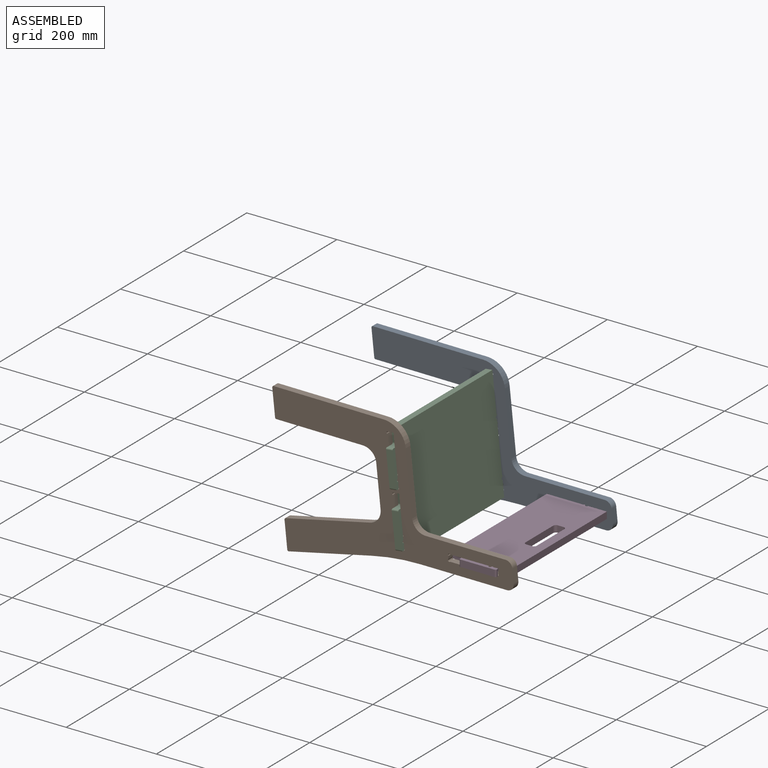
[diagram: assembled view]
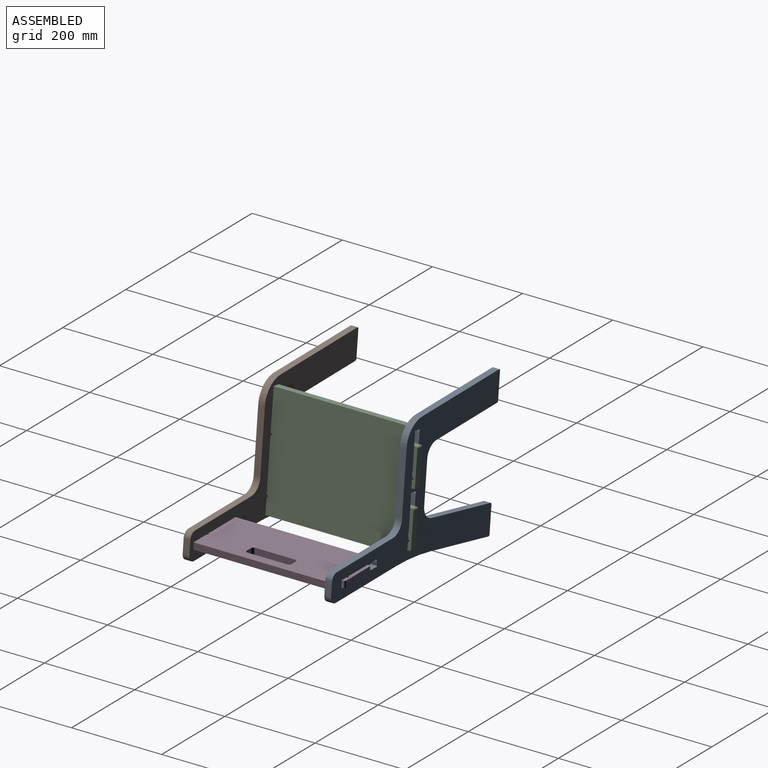
[diagram: assembled view, second angle]
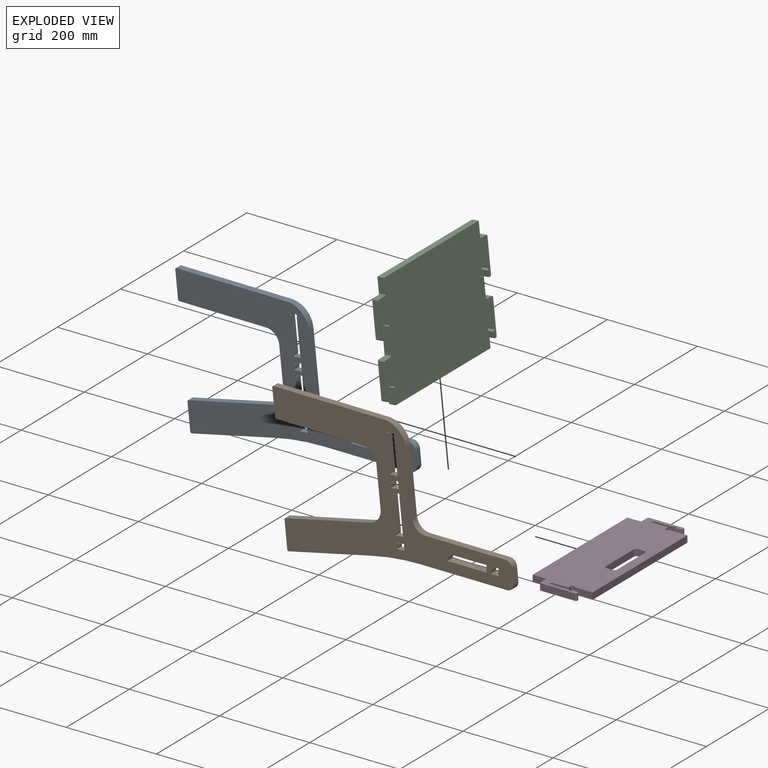
[diagram: exploded view]
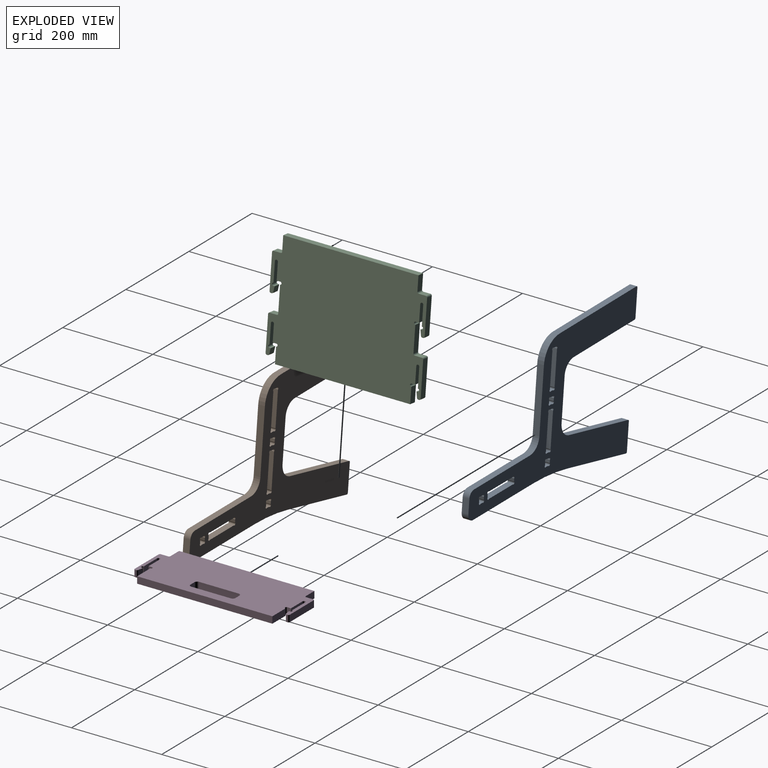
[diagram: exploded view, second angle]
ASSEMBLY  parts=4 mates=3
PART A: 72 faces, bbox 324.1x506.3x14.8 mm
  f0: cylinder r=3mm len=14.8mm, axis (0,0,-1), area 64.8mm2, adj f1,f21,f22,f23
  f1: plane 190.66x21.3mm, normal (0.99,-0.11,0), area 2839.4mm2, adj f0,f2,f22,f23
  f2: cylinder r=30mm len=29.81mm, axis (0,0,-1), area 648mm2, adj f1,f3,f22,f23
  f3: plane 91.97x14.8mm, normal (0,-1,0), area 1361.2mm2, adj f2,f4,f22,f23
  f4: cylinder r=30mm len=29.81mm, axis (0,0,-1), area 648mm2, adj f3,f5,f22,f23
  f5: plane 190.66x21.3mm, normal (-0.99,-0.11,0), area 2839.4mm2, adj f4,f6,f22,f23
  f6: cylinder r=3mm len=14.8mm, axis (0,0,-1), area 64.8mm2, adj f5,f7,f22,f23
  f7: plane 58.96x14.8mm, normal (0,-1,0), area 872.6mm2, adj f6,f8,f22,f23
  f8: cylinder r=3mm len=14.8mm, axis (0,0,-1), area 74.7mm2, adj f7,f9,f22,f23
  f9: plane 187.63x20.96mm, normal (0.99,0.11,0), area 2794.2mm2, adj f8,f10,f22,f23
  f10: cylinder r=500mm len=109.21mm, axis (0,0,-1), area 1619.5mm2, adj f9,f11,f22,f23
  f11: plane 189.57x20.47mm, normal (0.99,-0.11,0), area 2822mm2, adj f10,f12,f22,f23
  f12: cylinder r=15mm len=16.61mm, axis (0,0,-1), area 372.6mm2, adj f11,f13,f22,f23
  f13: plane 30.17x14.8mm, normal (0,1,0), area 446.6mm2, adj f12,f14,f22,f23
  f14: cylinder r=15mm len=14.91mm, axis (0,0,-1), area 324.8mm2, adj f13,f15,f22,f23
  f15: plane 176.18x19.03mm, normal (-0.99,0.11,0), area 2622.6mm2, adj f14,f16,f22,f23
  f16: cylinder r=30mm len=29.83mm, axis (0,0,-1), area 649.7mm2, adj f15,f17,f22,f23
  f17: plane 137.76x14.8mm, normal (0,1,0), area 2038.8mm2, adj f16,f18,f22,f23
  f18: cylinder r=50mm len=49.69mm, axis (0,0,-1), area 1080.1mm2, adj f17,f19,f22,f23
  f19: plane 242.22x27.06mm, normal (-0.99,0.11,0), area 3607.1mm2, adj f18,f20,f22,f23
  f20: cylinder r=3mm len=14.8mm, axis (0,0,-1), area 74.7mm2, adj f19,f21,f22,f23
  f21: plane 58.96x14.8mm, normal (0,-1,0), area 872.6mm2, adj f0,f20,f22,f23
  f22: plane 506.35x324.09mm, normal (0,0,1), area 56148.9mm2, adj f0,f1,f2,f3,f4,f5,f6,f7
  f23: plane 506.35x324.09mm, normal (0,0,-1), area 56148.9mm2, adj f0,f1,f2,f3,f4,f5,f6,f7
  f24: plane 14.8x6.31mm, normal (-1,0,0), area 93.5mm2, adj f22,f23,f25,f38
  f25: cylinder r=3mm len=14.8mm, axis (0,0,-1), area 139.5mm2, adj f22,f23,f24,f26
  f26: plane 14.8x6.29mm, normal (0,1,0), area 93mm2, adj f22,f23,f25,f27
  f27: cylinder r=3mm len=14.8mm, axis (0,0,-1), area 139.5mm2, adj f22,f23,f26,f28
  f28: plane 14.8x6.31mm, normal (1,0,0), area 93.5mm2, adj f22,f23,f27,f29
  f29: cylinder r=3mm len=14.8mm, axis (0,0,-1), area 139.5mm2, adj f22,f23,f28,f30
  f30: plane 14.8x6.29mm, normal (0,-1,0), area 93mm2, adj f22,f23,f29,f38
  f31: cylinder r=3mm len=14.8mm, axis (0,0,-1), area 139.5mm2, adj f22,f23,f32,f39
  f32: plane 14.8x6.22mm, normal (-1,0,0), area 92mm2, adj f22,f23,f31,f33
  f33: cylinder r=3mm len=14.8mm, axis (0,0,-1), area 139.5mm2, adj f22,f23,f32,f34
  f34: plane 75.61x14.8mm, normal (0,1,0), area 1119mm2, adj f22,f23,f33,f35
  f35: cylinder r=3mm len=14.8mm, axis (0,0,-1), area 139.5mm2, adj f22,f23,f34,f36
  f36: plane 14.8x6.32mm, normal (1,0,0), area 93.5mm2, adj f22,f23,f35,f37
  f37: cylinder r=3mm len=14.8mm, axis (0,0,-1), area 139.5mm2, adj f22,f23,f36,f39
  f38: cylinder r=3mm len=14.8mm, axis (0,0,-1), area 139.5mm2, adj f22,f23,f24,f30
  f39: plane 75.52x14.8mm, normal (0,-1,0), area 1117.6mm2, adj f22,f23,f31,f37
  f40: plane 14.8x6.31mm, normal (-1,0,0), area 93.5mm2, adj f22,f23,f41,f54
  f41: cylinder r=3mm len=14.8mm, axis (0,0,-1), area 139.5mm2, adj f22,f23,f40,f42
  f42: plane 14.8x6.29mm, normal (0,1,0), area 93mm2, adj f22,f23,f41,f43
  f43: cylinder r=3mm len=14.8mm, axis (0,0,-1), area 139.5mm2, adj f22,f23,f42,f44
  f44: plane 14.8x6.31mm, normal (1,0,0), area 93.5mm2, adj f22,f23,f43,f45
  f45: cylinder r=3mm len=14.8mm, axis (0,0,-1), area 139.5mm2, adj f22,f23,f44,f46
  f46: plane 14.8x6.29mm, normal (0,-1,0), area 93mm2, adj f22,f23,f45,f54
  f47: cylinder r=3mm len=14.8mm, axis (0,0,-1), area 139.5mm2, adj f22,f23,f48,f55
  f48: plane 14.8x6.22mm, normal (-1,0,0), area 92mm2, adj f22,f23,f47,f49
  f49: cylinder r=3mm len=14.8mm, axis (0,0,-1), area 139.5mm2, adj f22,f23,f48,f50
  f50: plane 75.61x14.8mm, normal (0,1,0), area 1119mm2, adj f22,f23,f49,f51
  f51: cylinder r=3mm len=14.8mm, axis (0,0,-1), area 139.5mm2, adj f22,f23,f50,f52
  f52: plane 14.8x6.32mm, normal (1,0,0), area 93.5mm2, adj f22,f23,f51,f53
  f53: cylinder r=3mm len=14.8mm, axis (0,0,-1), area 139.5mm2, adj f22,f23,f52,f55
  f54: cylinder r=3mm len=14.8mm, axis (0,0,-1), area 139.5mm2, adj f22,f23,f40,f46
  f55: plane 75.52x14.8mm, normal (0,-1,0), area 1117.6mm2, adj f22,f23,f47,f53
  f56: plane 14.8x6.28mm, normal (-0.1,-0.99,0), area 93.5mm2, adj f22,f23,f57,f70
  f57: cylinder r=3mm len=14.8mm, axis (0,0,-1), area 139.5mm2, adj f22,f23,f56,f58
  f58: plane 14.8x6.25mm, normal (-0.99,0.1,0), area 93mm2, adj f22,f23,f57,f59
  f59: cylinder r=3mm len=14.8mm, axis (0,0,-1), area 139.5mm2, adj f22,f23,f58,f60
  f60: plane 14.8x6.28mm, normal (0.1,0.99,0), area 93.5mm2, adj f22,f23,f59,f61
  f61: cylinder r=3mm len=14.8mm, axis (0,0,-1), area 139.5mm2, adj f22,f23,f60,f62
  f62: plane 14.8x6.25mm, normal (0.99,-0.1,0), area 93mm2, adj f22,f23,f61,f70
  f63: cylinder r=3mm len=14.8mm, axis (0,0,-1), area 139.5mm2, adj f22,f23,f64,f71
  f64: plane 14.8x6.18mm, normal (-0.1,-0.99,0), area 92mm2, adj f22,f23,f63,f65
  f65: cylinder r=3mm len=14.8mm, axis (0,0,-1), area 139.5mm2, adj f22,f23,f64,f66
  f66: plane 75.2x14.8mm, normal (-0.99,0.1,0), area 1119mm2, adj f22,f23,f65,f67
  f67: cylinder r=3mm len=14.8mm, axis (0,0,-1), area 139.5mm2, adj f22,f23,f66,f68
  f68: plane 14.8x6.28mm, normal (0.1,0.99,0), area 93.5mm2, adj f22,f23,f67,f69
  f69: cylinder r=3mm len=14.8mm, axis (0,0,-1), area 139.5mm2, adj f22,f23,f68,f71
  f70: cylinder r=3mm len=14.8mm, axis (0,0,-1), area 139.5mm2, adj f22,f23,f56,f62
  f71: plane 75.1x14.8mm, normal (0.99,-0.1,0), area 1117.6mm2, adj f22,f23,f63,f69
PART B: same geometry as A
PART C: 82 faces, bbox 250x344x14.8 mm
  f0: plane 56x14.8mm, normal (0,1,0), area 828.8mm2, adj f1,f20,f21,f40
  f1: cylinder r=3mm len=14.8mm, axis (0,0,1), area 139.5mm2, adj f0,f2,f20,f21
  f2: plane 14.8x8mm, normal (-1,0,0), area 118.4mm2, adj f1,f3,f20,f21
  f3: plane 36.57x14.8mm, normal (0,1,0), area 541.2mm2, adj f2,f4,f20,f21
  f4: cylinder r=3mm len=14.8mm, axis (0,0,1), area 69.7mm2, adj f3,f5,f20,f21
  f5: plane 14.8x0.5mm, normal (-1,0,0), area 7.4mm2, adj f4,f6,f20,f21
  f6: cylinder r=3mm len=14.8mm, axis (0,0,1), area 69.7mm2, adj f5,f7,f20,f21
  f7: plane 42.5x14.8mm, normal (0,-1,0), area 629mm2, adj f6,f8,f20,f21
  f8: cylinder r=3mm len=14.8mm, axis (0,0,1), area 139.5mm2, adj f7,f9,f20,f21
  f9: plane 14.8x2.2mm, normal (1,0,0), area 32.6mm2, adj f8,f10,f20,f21
  f10: cylinder r=0.5mm len=14.8mm, axis (0,0,1), area 12.9mm2, adj f9,f11,f20,f21
  f11: plane 14.8x11.71mm, normal (-0.17,-0.98,0), area 175.9mm2, adj f10,f12,f20,f21
  f12: cylinder r=3mm len=14.8mm, axis (0,0,1), area 62mm2, adj f11,f13,f20,f21
  f13: plane 14.8x2.18mm, normal (-1,0,0), area 32.2mm2, adj f12,f14,f20,f21
  f14: cylinder r=3mm len=14.8mm, axis (0,0,1), area 69.7mm2, adj f13,f15,f20,f21
  f15: plane 75.71x14.8mm, normal (0,1,0), area 1120.5mm2, adj f14,f16,f20,f21
  f16: cylinder r=3mm len=14.8mm, axis (0,0,1), area 69.7mm2, adj f15,f17,f20,f21
  f17: plane 16x14.8mm, normal (1,0,0), area 236.8mm2, adj f16,f18,f20,f21
  f18: cylinder r=3mm len=14.8mm, axis (0,0,1), area 69.7mm2, adj f17,f19,f20,f21
  f19: plane 32x14.8mm, normal (0,1,0), area 473.6mm2, adj f18,f20,f21,f42
  f20: plane 344x250mm, normal (0,0,-1), area 79590.2mm2, adj f0,f1,f2,f3,f4,f5,f6,f7
  f21: plane 344x250mm, normal (0,0,1), area 79590.2mm2, adj f0,f1,f2,f3,f4,f5,f6,f7
  f22: plane 34x14.8mm, normal (0,1,0), area 503.2mm2, adj f20,f21,f23,f43
  f23: cylinder r=3mm len=14.8mm, axis (0,0,1), area 139.5mm2, adj f20,f21,f22,f24
  f24: plane 14.8x8mm, normal (-1,0,0), area 118.4mm2, adj f20,f21,f23,f25
  f25: plane 36.57x14.8mm, normal (0,1,0), area 541.2mm2, adj f20,f21,f24,f26
  f26: cylinder r=3mm len=14.8mm, axis (0,0,1), area 69.7mm2, adj f20,f21,f25,f27
  f27: plane 14.8x0.5mm, normal (-1,0,0), area 7.4mm2, adj f20,f21,f26,f28
  f28: cylinder r=3mm len=14.8mm, axis (0,0,1), area 69.7mm2, adj f20,f21,f27,f29
  f29: plane 42.5x14.8mm, normal (0,-1,0), area 629mm2, adj f20,f21,f28,f30
  f30: cylinder r=3mm len=14.8mm, axis (0,0,1), area 139.5mm2, adj f20,f21,f29,f31
  f31: plane 14.8x2.2mm, normal (1,0,0), area 32.6mm2, adj f20,f21,f30,f32
  f32: cylinder r=0.5mm len=14.8mm, axis (0,0,1), area 12.9mm2, adj f20,f21,f31,f33
  f33: plane 14.8x11.71mm, normal (-0.17,-0.98,0), area 175.9mm2, adj f20,f21,f32,f34
  f34: cylinder r=3mm len=14.8mm, axis (0,0,1), area 62mm2, adj f20,f21,f33,f35
  f35: plane 14.8x2.18mm, normal (-1,0,0), area 32.2mm2, adj f20,f21,f34,f36
  f36: cylinder r=3mm len=14.8mm, axis (0,0,1), area 69.7mm2, adj f20,f21,f35,f37
  f37: plane 75.71x14.8mm, normal (0,1,0), area 1120.5mm2, adj f20,f21,f36,f38
  f38: cylinder r=3mm len=14.8mm, axis (0,0,1), area 69.7mm2, adj f20,f21,f37,f39
  f39: plane 16x14.8mm, normal (1,0,0), area 236.8mm2, adj f20,f21,f38,f40
  f40: cylinder r=3mm len=14.8mm, axis (0,0,1), area 69.7mm2, adj f0,f20,f21,f39
  f41: plane 32x14.8mm, normal (0,-1,0), area 473.6mm2, adj f20,f21,f42,f63
  f42: plane 300x14.8mm, normal (1,0,0), area 4440mm2, adj f19,f20,f21,f41
  f43: plane 300x14.8mm, normal (-1,0,0), area 4440mm2, adj f20,f21,f22,f44
  f44: plane 34x14.8mm, normal (0,-1,0), area 503.2mm2, adj f20,f21,f43,f64
  f45: plane 56x14.8mm, normal (0,-1,0), area 828.8mm2, adj f20,f21,f46,f81
  f46: cylinder r=3mm len=14.8mm, axis (0,0,-1), area 139.5mm2, adj f20,f21,f45,f47
  f47: plane 14.8x8mm, normal (-1,0,0), area 118.4mm2, adj f20,f21,f46,f48
  f48: plane 36.57x14.8mm, normal (0,-1,0), area 541.2mm2, adj f20,f21,f47,f49
  f49: cylinder r=3mm len=14.8mm, axis (0,0,-1), area 69.7mm2, adj f20,f21,f48,f50
  f50: plane 14.8x0.5mm, normal (-1,0,0), area 7.4mm2, adj f20,f21,f49,f51
  f51: cylinder r=3mm len=14.8mm, axis (0,0,-1), area 69.7mm2, adj f20,f21,f50,f52
  f52: plane 42.5x14.8mm, normal (0,1,0), area 629mm2, adj f20,f21,f51,f53
  f53: cylinder r=3mm len=14.8mm, axis (0,0,-1), area 139.5mm2, adj f20,f21,f52,f54
  f54: plane 14.8x2.2mm, normal (1,0,0), area 32.6mm2, adj f20,f21,f53,f55
  f55: cylinder r=0.5mm len=14.8mm, axis (0,0,-1), area 12.9mm2, adj f20,f21,f54,f56
  f56: plane 14.8x11.71mm, normal (-0.17,0.98,0), area 175.9mm2, adj f20,f21,f55,f57
  f57: cylinder r=3mm len=14.8mm, axis (0,0,-1), area 62mm2, adj f20,f21,f56,f58
  f58: plane 14.8x2.18mm, normal (-1,0,0), area 32.2mm2, adj f20,f21,f57,f59
  f59: cylinder r=3mm len=14.8mm, axis (0,0,-1), area 69.7mm2, adj f20,f21,f58,f60
  f60: plane 75.71x14.8mm, normal (0,-1,0), area 1120.5mm2, adj f20,f21,f59,f61
  f61: cylinder r=3mm len=14.8mm, axis (0,0,-1), area 69.7mm2, adj f20,f21,f60,f62
  f62: plane 16x14.8mm, normal (1,0,0), area 236.8mm2, adj f20,f21,f61,f63
  f63: cylinder r=3mm len=14.8mm, axis (0,0,-1), area 69.7mm2, adj f20,f21,f41,f62
  f64: cylinder r=3mm len=14.8mm, axis (0,0,-1), area 139.5mm2, adj f20,f21,f44,f65
  f65: plane 14.8x8mm, normal (-1,0,0), area 118.4mm2, adj f20,f21,f64,f66
  f66: plane 36.57x14.8mm, normal (0,-1,0), area 541.2mm2, adj f20,f21,f65,f67
  f67: cylinder r=3mm len=14.8mm, axis (0,0,-1), area 69.7mm2, adj f20,f21,f66,f68
  f68: plane 14.8x0.5mm, normal (-1,0,0), area 7.4mm2, adj f20,f21,f67,f69
  f69: cylinder r=3mm len=14.8mm, axis (0,0,-1), area 69.7mm2, adj f20,f21,f68,f70
  f70: plane 42.5x14.8mm, normal (0,1,0), area 629mm2, adj f20,f21,f69,f71
  f71: cylinder r=3mm len=14.8mm, axis (0,0,-1), area 139.5mm2, adj f20,f21,f70,f72
  f72: plane 14.8x2.2mm, normal (1,0,0), area 32.6mm2, adj f20,f21,f71,f73
  f73: cylinder r=0.5mm len=14.8mm, axis (0,0,-1), area 12.9mm2, adj f20,f21,f72,f74
  f74: plane 14.8x11.71mm, normal (-0.17,0.98,0), area 175.9mm2, adj f20,f21,f73,f75
  f75: cylinder r=3mm len=14.8mm, axis (0,0,-1), area 62mm2, adj f20,f21,f74,f76
  f76: plane 14.8x2.18mm, normal (-1,0,0), area 32.2mm2, adj f20,f21,f75,f77
  f77: cylinder r=3mm len=14.8mm, axis (0,0,-1), area 69.7mm2, adj f20,f21,f76,f78
  f78: plane 75.71x14.8mm, normal (0,-1,0), area 1120.5mm2, adj f20,f21,f77,f79
  f79: cylinder r=3mm len=14.8mm, axis (0,0,-1), area 69.7mm2, adj f20,f21,f78,f80
  f80: plane 16x14.8mm, normal (1,0,0), area 236.8mm2, adj f20,f21,f79,f81
  f81: cylinder r=3mm len=14.8mm, axis (0,0,-1), area 69.7mm2, adj f20,f21,f45,f80
PART D: 52 faces, bbox 133x344x14.8 mm
  f0: cylinder r=6mm len=14.8mm, axis (0,0,-1), area 139.5mm2, adj f1,f13,f14,f15
  f1: plane 14.8x13mm, normal (0,-1,0), area 192.4mm2, adj f0,f2,f14,f15
  f2: cylinder r=6mm len=14.8mm, axis (0,0,-1), area 139.5mm2, adj f1,f3,f14,f15
  f3: plane 88x14.8mm, normal (-1,0,0), area 1302.4mm2, adj f2,f4,f14,f15
  f4: cylinder r=6mm len=14.8mm, axis (0,0,-1), area 139.5mm2, adj f3,f5,f14,f15
  f5: plane 14.8x13mm, normal (0,1,0), area 192.4mm2, adj f4,f6,f14,f15
  f6: cylinder r=6mm len=14.8mm, axis (0,0,-1), area 139.5mm2, adj f5,f13,f14,f15
  f7: plane 27.5x14.8mm, normal (0,1,0), area 407mm2, adj f8,f14,f15,f51
  f8: plane 300x14.8mm, normal (-1,0,0), area 4440mm2, adj f7,f9,f14,f15
  f9: plane 27.5x14.8mm, normal (0,-1,0), area 407mm2, adj f8,f14,f15,f33
  f10: plane 41.5x14.8mm, normal (0,-1,0), area 614.2mm2, adj f11,f14,f15,f16
  f11: plane 300x14.8mm, normal (1,0,0), area 4440mm2, adj f10,f12,f14,f15
  f12: plane 41.5x14.8mm, normal (0,1,0), area 614.2mm2, adj f11,f14,f15,f34
  f13: plane 88x14.8mm, normal (1,0,0), area 1302.4mm2, adj f0,f6,f14,f15
  f14: plane 344x133mm, normal (0,0,1), area 39726mm2, adj f0,f1,f2,f3,f4,f5,f6,f7
  f15: plane 344x133mm, normal (0,0,-1), area 39726mm2, adj f0,f1,f2,f3,f4,f5,f6,f7
  f16: cylinder r=3mm len=14.8mm, axis (0,0,1), area 139.5mm2, adj f10,f14,f15,f17
  f17: plane 14.8x8mm, normal (1,0,0), area 118.4mm2, adj f14,f15,f16,f18
  f18: plane 36.57x14.8mm, normal (0,-1,0), area 541.2mm2, adj f14,f15,f17,f19
  f19: cylinder r=3mm len=14.8mm, axis (0,0,1), area 69.7mm2, adj f14,f15,f18,f20
  f20: plane 14.8x0.5mm, normal (1,0,0), area 7.4mm2, adj f14,f15,f19,f21
  f21: cylinder r=3mm len=14.8mm, axis (0,0,1), area 69.7mm2, adj f14,f15,f20,f22
  f22: plane 42.5x14.8mm, normal (0,1,0), area 629mm2, adj f14,f15,f21,f23
  f23: cylinder r=3mm len=14.8mm, axis (0,0,1), area 139.5mm2, adj f14,f15,f22,f24
  f24: plane 14.8x2.2mm, normal (-1,0,0), area 32.6mm2, adj f14,f15,f23,f25
  f25: cylinder r=0.5mm len=14.8mm, axis (0,0,1), area 12.9mm2, adj f14,f15,f24,f26
  f26: plane 14.8x11.71mm, normal (0.17,0.98,0), area 175.9mm2, adj f14,f15,f25,f27
  f27: cylinder r=3mm len=14.8mm, axis (0,0,1), area 62mm2, adj f14,f15,f26,f28
  f28: plane 14.8x2.18mm, normal (1,0,0), area 32.2mm2, adj f14,f15,f27,f29
  f29: cylinder r=3mm len=14.8mm, axis (0,0,1), area 69.7mm2, adj f14,f15,f28,f30
  f30: plane 75.71x14.8mm, normal (0,-1,0), area 1120.5mm2, adj f14,f15,f29,f31
  f31: cylinder r=3mm len=14.8mm, axis (0,0,1), area 69.7mm2, adj f14,f15,f30,f32
  f32: plane 16x14.8mm, normal (-1,0,0), area 236.8mm2, adj f14,f15,f31,f33
  f33: cylinder r=3mm len=14.8mm, axis (0,0,1), area 69.7mm2, adj f9,f14,f15,f32
  f34: cylinder r=3mm len=14.8mm, axis (0,0,-1), area 139.5mm2, adj f12,f14,f15,f35
  f35: plane 14.8x8mm, normal (1,0,0), area 118.4mm2, adj f14,f15,f34,f36
  f36: plane 36.57x14.8mm, normal (0,1,0), area 541.2mm2, adj f14,f15,f35,f37
  f37: cylinder r=3mm len=14.8mm, axis (0,0,-1), area 69.7mm2, adj f14,f15,f36,f38
  f38: plane 14.8x0.5mm, normal (1,0,0), area 7.4mm2, adj f14,f15,f37,f39
  f39: cylinder r=3mm len=14.8mm, axis (0,0,-1), area 69.7mm2, adj f14,f15,f38,f40
  f40: plane 42.5x14.8mm, normal (0,-1,0), area 629mm2, adj f14,f15,f39,f41
  f41: cylinder r=3mm len=14.8mm, axis (0,0,-1), area 139.5mm2, adj f14,f15,f40,f42
  f42: plane 14.8x2.2mm, normal (-1,0,0), area 32.6mm2, adj f14,f15,f41,f43
  f43: cylinder r=0.5mm len=14.8mm, axis (0,0,-1), area 12.9mm2, adj f14,f15,f42,f44
  f44: plane 14.8x11.71mm, normal (0.17,-0.98,0), area 175.9mm2, adj f14,f15,f43,f45
  f45: cylinder r=3mm len=14.8mm, axis (0,0,-1), area 62mm2, adj f14,f15,f44,f46
  f46: plane 14.8x2.18mm, normal (1,0,0), area 32.2mm2, adj f14,f15,f45,f47
  f47: cylinder r=3mm len=14.8mm, axis (0,0,-1), area 69.7mm2, adj f14,f15,f46,f48
  f48: plane 75.71x14.8mm, normal (0,1,0), area 1120.5mm2, adj f14,f15,f47,f49
  f49: cylinder r=3mm len=14.8mm, axis (0,0,-1), area 69.7mm2, adj f14,f15,f48,f50
  f50: plane 16x14.8mm, normal (-1,0,0), area 236.8mm2, adj f14,f15,f49,f51
  f51: cylinder r=3mm len=14.8mm, axis (0,0,-1), area 69.7mm2, adj f7,f14,f15,f50
PLACE A rot(axis=(0.62,0.56,-0.56),116.6deg) t=(-84.2,-37.97,708.04)mm
PLACE B rot(axis=(0.62,0.56,-0.56),116.6deg) t=(-84.2,-352.17,708.04)mm
PLACE C rot(axis=(0,-1,0),96deg) t=(368.24,-352.47,-32.7)mm
PLACE D t=(-146.35,-85.51,-14.95)mm
MATE fastened B.f44 <-> C.f54  axis (0.1,0,-0.99) through (345.4,-366.97,113.78)mm
MATE fastened B.f60 <-> D.f24  axis (1,0,0) through (560.34,-366.97,-7.55)mm
MATE fastened D.f42 <-> A.f60  axis (-1,0,0) through (560.34,-37.97,-7.55)mm
